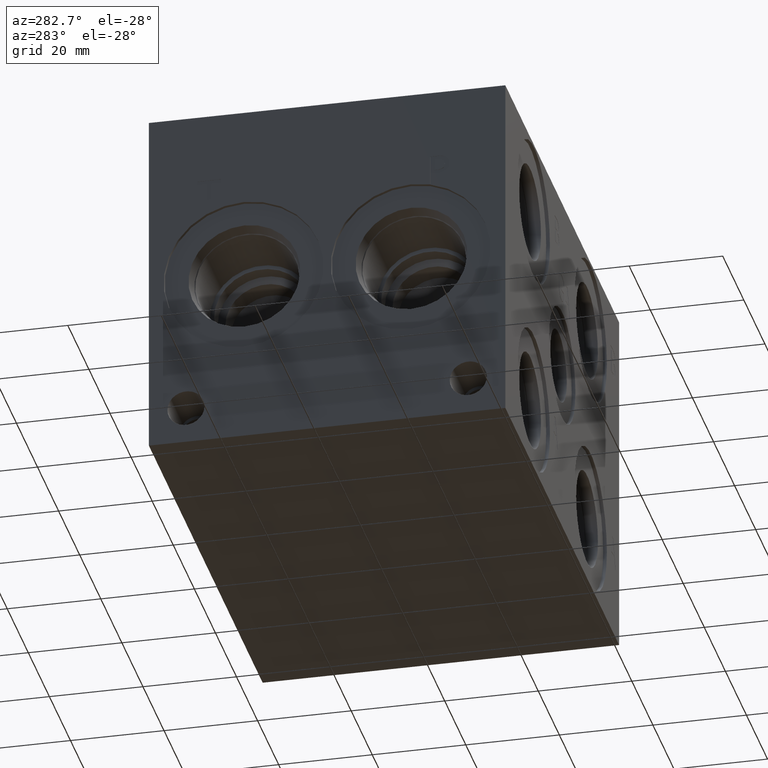
[diagram: clean part render]
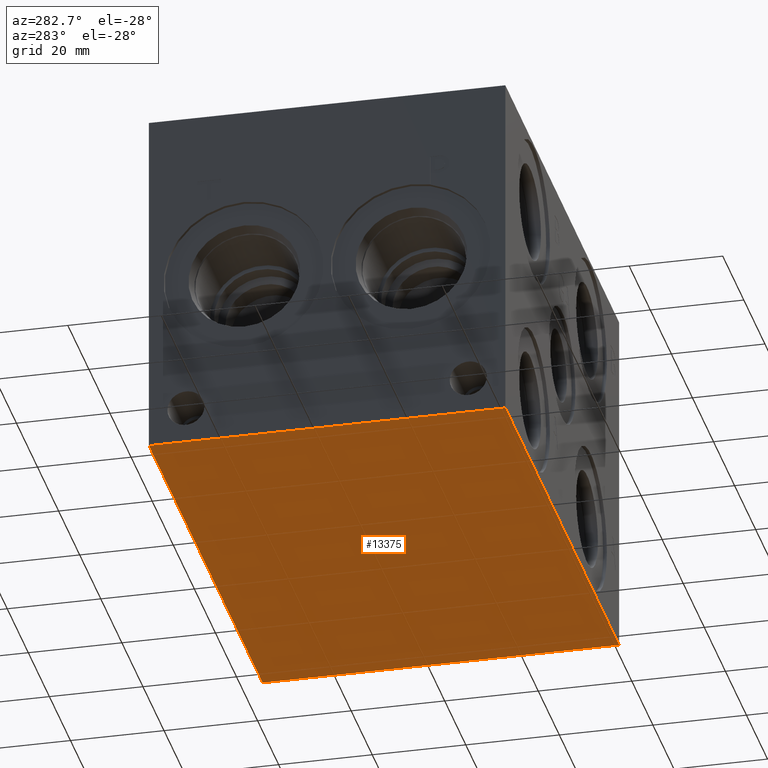
[diagram: same view with one face highlighted and labeled with its STEP entity id]
A machine part, auxiliary view. The second image highlights one B-rep face of the part: STEP entity #13375.
In plain terms, the highlighted planar face has unit normal (0, 0, 1).
Its self-contained STEP definition (entity closure, byte-faithful):
#1823=FACE_OUTER_BOUND('',#2623,.T.);
#2623=EDGE_LOOP('',(#11830,#11831,#11832,#11833));
#2929=LINE('',#19622,#4105);
#3366=LINE('',#20789,#4542);
#3425=LINE('',#21061,#4601);
#3461=LINE('',#21149,#4637);
#4105=VECTOR('',#14685,10.);
#4542=VECTOR('',#15440,10.);
#4601=VECTOR('',#15553,10.);
#4637=VECTOR('',#15631,10.);
#5330=VERTEX_POINT('',#19620);
#5331=VERTEX_POINT('',#19621);
#5646=VERTEX_POINT('',#20788);
#5704=VERTEX_POINT('',#21060);
#6788=EDGE_CURVE('',#5330,#5331,#2929,.T.);
#7259=EDGE_CURVE('',#5646,#5330,#3366,.T.);
#7342=EDGE_CURVE('',#5331,#5704,#3425,.T.);
#7386=EDGE_CURVE('',#5704,#5646,#3461,.T.);
#11830=ORIENTED_EDGE('',*,*,#7386,.F.);
#11831=ORIENTED_EDGE('',*,*,#7342,.F.);
#11832=ORIENTED_EDGE('',*,*,#6788,.F.);
#11833=ORIENTED_EDGE('',*,*,#7259,.F.);
#12196=PLANE('',#14225);
#13375=ADVANCED_FACE('',(#1823),#12196,.F.);
#14225=AXIS2_PLACEMENT_3D('',#23233,#17074,#17075);
#14685=DIRECTION('',(-1.,0.,0.));
#15440=DIRECTION('',(0.,1.,0.));
#15553=DIRECTION('',(0.,-1.,0.));
#15631=DIRECTION('',(1.,0.,0.));
#17074=DIRECTION('center_axis',(0.,0.,1.));
#17075=DIRECTION('ref_axis',(1.,0.,0.));
#19620=CARTESIAN_POINT('',(107.95,76.2,0.));
#19621=CARTESIAN_POINT('',(0.,76.2,0.));
#19622=CARTESIAN_POINT('',(107.95,76.2,0.));
#20788=CARTESIAN_POINT('',(107.95,0.,0.));
#20789=CARTESIAN_POINT('',(107.95,0.,0.));
#21060=CARTESIAN_POINT('',(0.,0.,0.));
#21061=CARTESIAN_POINT('',(0.,76.2,0.));
#21149=CARTESIAN_POINT('',(0.,0.,0.));
#23233=CARTESIAN_POINT('Origin',(53.975,38.1,0.));